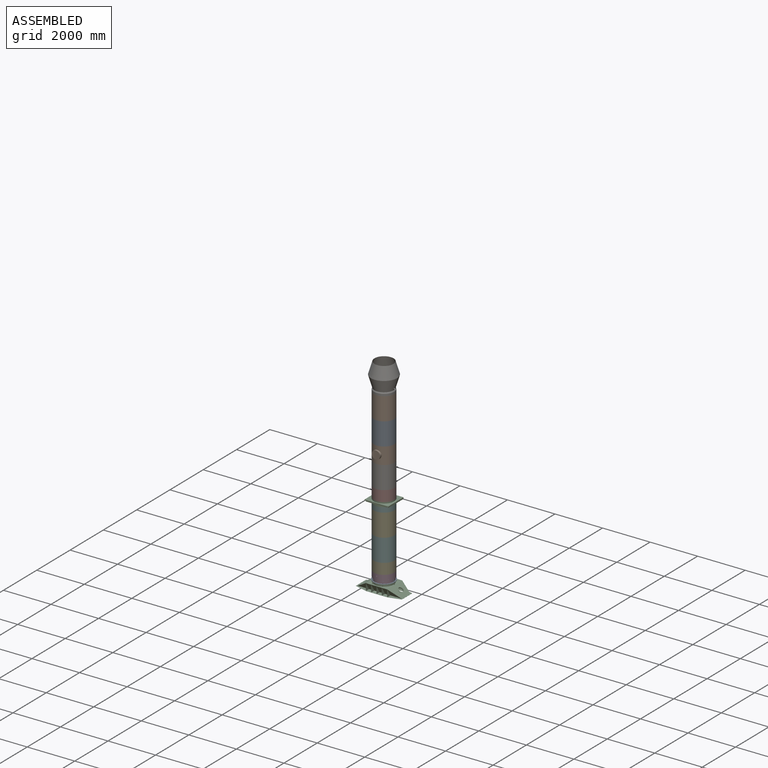
[diagram: assembled view]
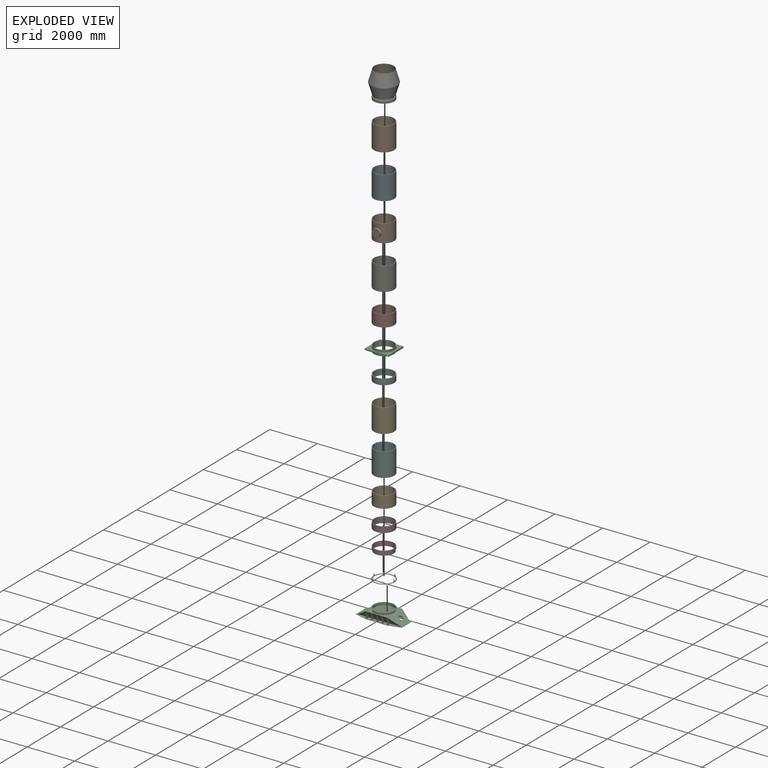
[diagram: exploded view]
GUIDED TOUR — MATED ASSEMBLY (Onshape document 00dcdc60ab96011bba04299d, AutoMate assembly 00dcdc60ab96011bba04299d_60f186a448aab7cdc48847c5_920a1cc981edee7858caf9ab_default)

This assembly has 15 components, labeled P0..P14 below (a component is one placed occurrence of a part; the same part can appear more than once), held together by 14 mates. A mate is a constraint between two components; its type names the relative motion it leaves free:
  FASTENED — locks the two components together rigidly (no relative motion).
Axis/direction vectors are unit vectors and 'through' points are millimeter coordinates, both in the assembly's world frame.

MATES
  1. FASTENED "Fastened 9": P7 <-> P10, direction (0.000, 0.000, -1.000) through (16.68, -8.72, 3558.68) mm
  2. FASTENED "Fastened 7": P13 <-> P12, direction (0.000, 0.000, -1.000) through (16.68, -8.72, 3158.68) mm
  3. FASTENED "Fastened 6": P12 <-> P5, direction (0.000, 0.000, -1.000) through (16.68, -8.72, 2203.68) mm
  4. FASTENED "Fastened 10": P7 <-> P6, direction (0.000, 0.000, 1.000) through (16.68, -8.72, 4013.68) mm
  5. FASTENED "Fastened 2": P11 <-> P2, direction (0.000, 0.000, -1.000) through (16.68, -8.72, 393.68) mm
  6. FASTENED "Fastened 11": P1 <-> P6, direction (0.000, 0.000, -1.000) through (16.68, -8.72, 4968.68) mm
  7. FASTENED "Fastened 4": P4 <-> P3, direction (0.000, 0.000, -1.000) through (16.68, -8.72, 793.68) mm
  8. FASTENED "Fastened 14": P9 <-> P14, direction (0.000, 0.000, 1.000) through (16.68, -8.72, 7583.68) mm
  9. FASTENED "Fastened 8": P10 <-> P13, direction (0.000, 0.000, -1.000) through (16.68, -8.72, 3363.68) mm
  10. FASTENED "Fastened 3": P3 <-> P11, direction (0.000, 0.000, -1.000) through (16.68, -8.72, 588.68) mm
  11. FASTENED "Fastened 12": P8 <-> P1, direction (0.000, 0.000, -1.000) through (16.68, -8.72, 5673.68) mm
  12. FASTENED "Fastened 13": P8 <-> P9, direction (0.000, 0.000, 1.000) through (16.68, -8.72, 6628.68) mm
  13. FASTENED "Fastened 5": P5 <-> P4, direction (0.000, 0.000, -1.000) through (16.68, -8.72, 1248.68) mm
  14. FASTENED "Fastened 1": P0 <-> P2, direction (0.000, 0.000, -1.000) through (16.68, -8.72, 393.68) mm

ASSEMBLY ORDER
  1. P0 — the base component [order verified]
  2. P11 [order verified]
  3. P2 [order verified]
  4. P3 [order verified]
  5. P4 [order verified]
  6. P5 [order verified]
  7. P12 [order verified]
  8. P13 [order verified]
  9. P10 [order verified]
  10. P7 [order verified]
  11. P6 [order verified]
  12. P1 [order verified]
  13. P8 [order verified]
  14. P9 [order verified]
  15. P14 [order verified]
Order-tag legend:
  [order verified] — this step's position reverses a verified removal order: the component was checked to insert without passing through the ones already placed.

Of the 15 components, 11 carry the full construction recipe — the FeatureScript program that regenerates the part's solid from scratch; the rest are supplied as boundary geometry only.
Because this assembly has more than 12 components, the tour below covers the 12 most significant ones individually (every recipe-attached component first, then the largest by part volume), in assembly order; the remaining 3 are summarized together in a grouped section at the end.
Each toured component is shown spotlighted twice — in the assembled view, then in the exploded view, where a leader line traces a displaced component back to its assembled socket (saturated green if recipe-attached, orange if geometry-only; every other component desaturated gray) — followed by its recipe or geometry summary and the mates that hold it.
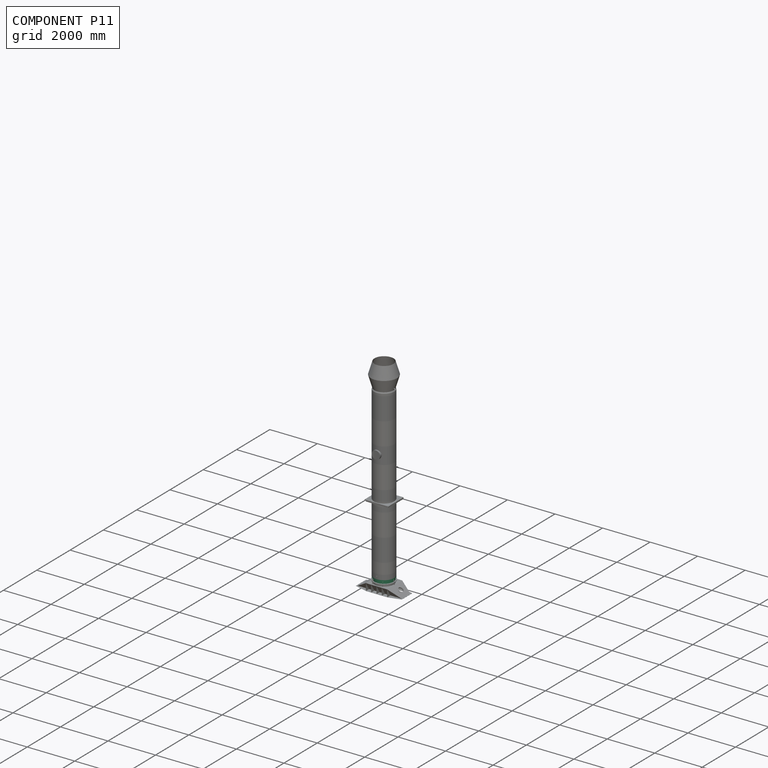
[diagram: component P11 — assembled]
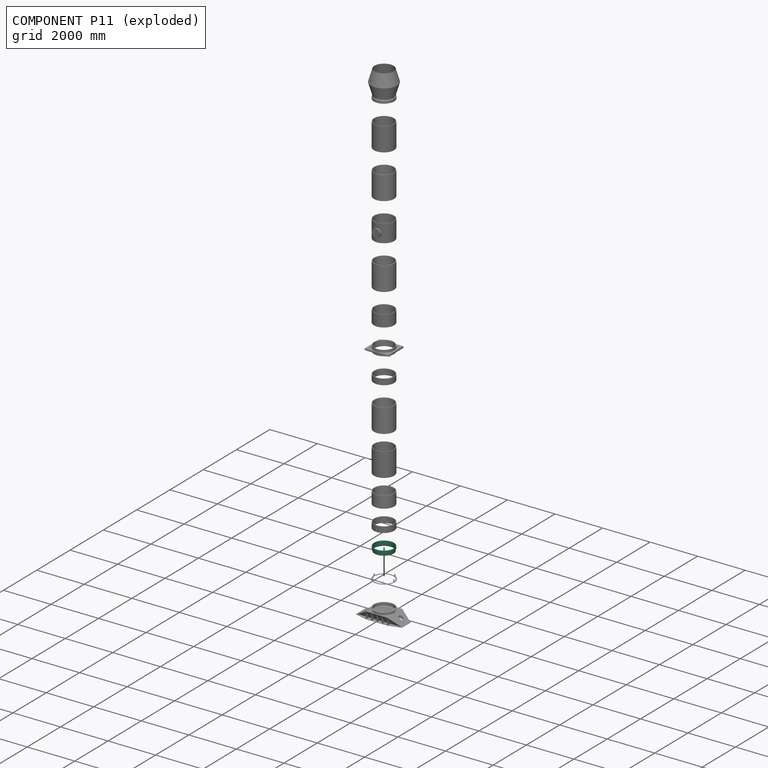
[diagram: component P11 — exploded]
COMPONENT P11 — recipe-attached (CADFS 00581985, mesh-verified: the recipe's output STEP matches this component's geometry to below the mesh-comparison resolution (tessellation chordal tolerance ~1.83 mm)).
Held by: FASTENED mate "Fastened 2" to P2; FASTENED mate "Fastened 3" to P3.
Construction recipe (FeatureScript — the CAD program that rebuilds this solid; sketch coordinates are in the units given by the * unit suffixes, e.g. mm):

FeatureScript 2625;
import(path : "onshape/std/geometry.fs", version : "2625.0");
import(path : "onshape/std/common.fs", version : "2625.0");
const mm = millimeter;
const VERTEX = EntityType.VERTEX;
const EDGE = EntityType.EDGE;
const FACE = EntityType.FACE;
const BODY = EntityType.BODY;
function v(x, y){return vector(x, y);}
function OD(order){return orderDisambiguation(order);}
function OSD(set){return originalSetDisambiguation(set);}
function TD(topology){return topologyDisambiguation(topology);}
function TDD(query){return trueDependencyDisambiguation(query);}
function sQuery(a, b, c) {return sketchEntityQuery(a, b, c);}

annotation { "Feature Type Name" : "Feature", "Feature Type Description" : "" }
export const myFeature = defineFeature(function(context is Context, id is Id, definition is map)
    precondition{}
    {
        {
            var Q0;
            Q0=qCreatedBy(makeId("Front.planeOp"),FACE);
            var sketch = newSketch(context, id + "F0", { "sketchPlane" : qUnion([Q0])});
            skLineSegment(sketch, "E0", {"start": v(0, 710.75) * mm, "end": v(0, -704.58) * mm, "construction": true});
            skLineSegment(sketch, "E1", {"start": v(-400, 295.65) * mm, "end": v(-400, 410.65) * mm});
            skLineSegment(sketch, "E2", {"start": v(-400, 410.65) * mm, "end": v(-401, 410.65) * mm});
            skLineSegment(sketch, "E3", {"start": v(-424, 410.65) * mm, "end": v(-425, 410.65) * mm});
            skLineSegment(sketch, "E4", {"start": v(-425, 410.65) * mm, "end": v(-425, 360.65) * mm});
            skLineSegment(sketch, "E5", {"start": v(-425, 360.65) * mm, "end": v(-401, 360.65) * mm});
            skLineSegment(sketch, "E6", {"start": v(-401, 360.65) * mm, "end": v(-401, 295.65) * mm});
            skLineSegment(sketch, "E7", {"start": v(-424, 450.65) * mm, "end": v(-424, 410.65) * mm});
            skLineSegment(sketch, "E8", {"start": v(-424, 450.65) * mm, "end": v(-401, 450.65) * mm});
            skLineSegment(sketch, "E9", {"start": v(-401, 410.65) * mm, "end": v(-401, 450.65) * mm});
            skLineSegment(sketch, "E10", {"start": v(-400, 295.65) * mm, "end": v(-400, 255.65) * mm});
            skLineSegment(sketch, "E11", {"start": v(-401, 295.65) * mm, "end": v(-401, 255.65) * mm});
            skLineSegment(sketch, "E12", {"start": v(-401, 255.65) * mm, "end": v(-400, 255.65) * mm});
            skSolve(sketch);
        }
        {
            var Q0;
            Q0=qSketchRegion(id+"F0",true);
            var Q1;
            Q1=sQuery(id+"F0.wireOp",EDGE,"E0");
            revolve(context, id + "F1", {"entities" : qUnion([Q0]), "axis" : qUnion([Q1]), "revolveType" : RevolveType.FULL});
        }
    });
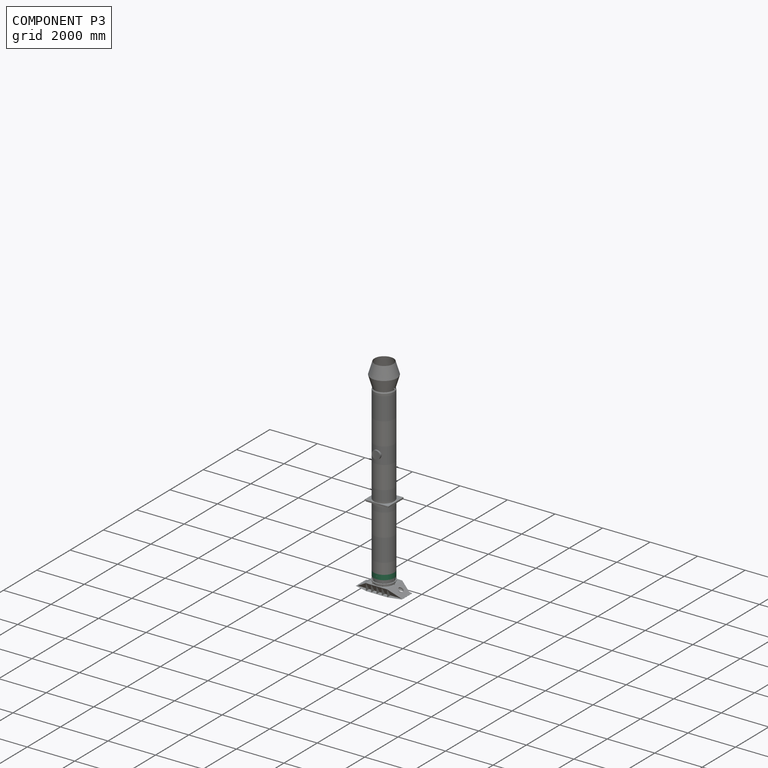
[diagram: component P3 — assembled]
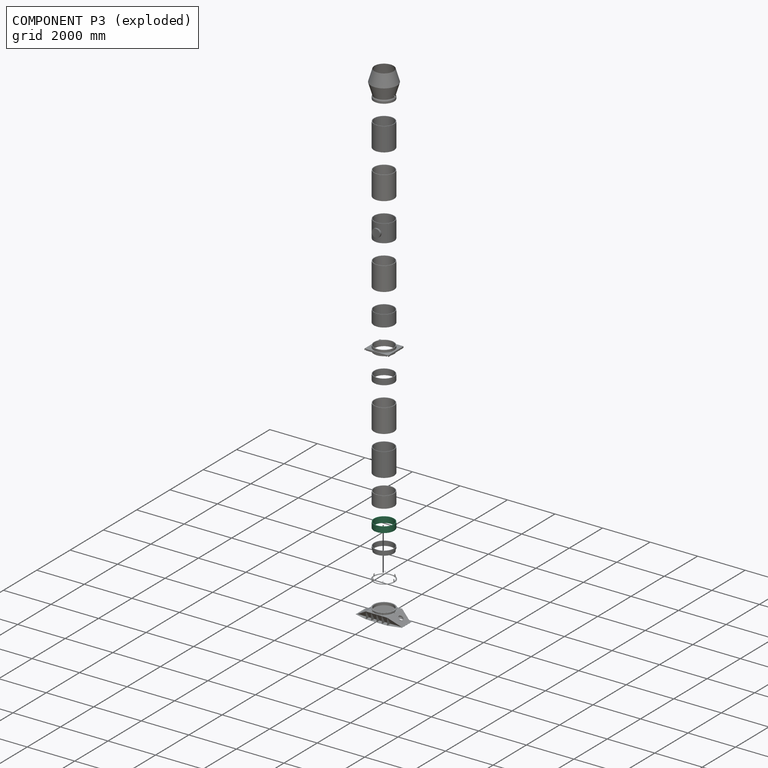
[diagram: component P3 — exploded]
COMPONENT P3 — recipe-attached (CADFS 00581888, mesh-verified: the recipe's output STEP matches this component's geometry to below the mesh-comparison resolution (tessellation chordal tolerance ~1.87 mm)).
Held by: FASTENED mate "Fastened 4" to P4; FASTENED mate "Fastened 3" to P11.
Construction recipe (FeatureScript — the CAD program that rebuilds this solid; sketch coordinates are in the units given by the * unit suffixes, e.g. mm):

FeatureScript 2625;
import(path : "onshape/std/geometry.fs", version : "2625.0");
import(path : "onshape/std/common.fs", version : "2625.0");
const mm = millimeter;
const VERTEX = EntityType.VERTEX;
const EDGE = EntityType.EDGE;
const FACE = EntityType.FACE;
const BODY = EntityType.BODY;
function v(x, y){return vector(x, y);}
function OD(order){return orderDisambiguation(order);}
function OSD(set){return originalSetDisambiguation(set);}
function TD(topology){return topologyDisambiguation(topology);}
function TDD(query){return trueDependencyDisambiguation(query);}
function sQuery(a, b, c) {return sketchEntityQuery(a, b, c);}

annotation { "Feature Type Name" : "Feature", "Feature Type Description" : "" }
export const myFeature = defineFeature(function(context is Context, id is Id, definition is map)
    precondition{}
    {
        {
            var Q0;
            Q0=qCreatedBy(makeId("Front.planeOp"),FACE);
            var sketch = newSketch(context, id + "F0", { "sketchPlane" : qUnion([Q0])});
            skLineSegment(sketch, "E0", {"start": v(0, 74.87) * mm, "end": v(0, -73.71) * mm, "construction": true});
            skLineSegment(sketch, "E1", {"start": v(0, 374.84) * mm, "end": v(0, -528.94) * mm, "construction": true});
            skLineSegment(sketch, "E2", {"start": v(-400, -489.75) * mm, "end": v(-400, -284.75) * mm});
            skLineSegment(sketch, "E3", {"start": v(-400, -284.75) * mm, "end": v(-401, -284.75) * mm});
            skLineSegment(sketch, "E4", {"start": v(-401, -284.75) * mm, "end": v(-401, -244.75) * mm});
            skLineSegment(sketch, "E5", {"start": v(-401, -244.75) * mm, "end": v(-424, -244.75) * mm});
            skLineSegment(sketch, "E6", {"start": v(-424, -244.75) * mm, "end": v(-424, -284.75) * mm});
            skLineSegment(sketch, "E7", {"start": v(-424, -284.75) * mm, "end": v(-425, -284.75) * mm});
            skLineSegment(sketch, "E8", {"start": v(-425, -284.75) * mm, "end": v(-425, -489.75) * mm});
            skLineSegment(sketch, "E9", {"start": v(-425, -489.75) * mm, "end": v(-424, -489.75) * mm});
            skLineSegment(sketch, "E10", {"start": v(-424, -489.75) * mm, "end": v(-424, -449.75) * mm});
            skLineSegment(sketch, "E11", {"start": v(-424, -449.75) * mm, "end": v(-401, -449.75) * mm});
            skLineSegment(sketch, "E12", {"start": v(-401, -449.75) * mm, "end": v(-401, -489.75) * mm});
            skLineSegment(sketch, "E13", {"start": v(-401, -489.75) * mm, "end": v(-400, -489.75) * mm});
            skSolve(sketch);
        }
        {
            var Q0;
            Q0=qSketchRegion(id+"F0",true);
            var Q1;
            Q1=sQuery(id+"F0.wireOp",EDGE,"E1");
            revolve(context, id + "F1", {"entities" : qUnion([Q0]), "axis" : qUnion([Q1]), "revolveType" : RevolveType.FULL});
        }
        {
            var Q0;
            Q0=qCreatedBy(makeId("Front.planeOp"),FACE);
            var sketch = newSketch(context, id + "F2", { "sketchPlane" : qUnion([Q0])});
            skLineSegment(sketch, "E14", {"start": v(0, 0) * mm, "end": v(0, -739.5) * mm, "construction": true});
            skCircle(sketch, "E15", {"center": v(0, -369.75) * mm, "radius": 10 * mm});
            skLineSegment(sketch, "E16.0", {"start": v(-424, -244.75) * mm, "end": v(424, -244.75) * mm, "construction": true});
            skSolve(sketch);
        }
        {
            var Q0;
            Q0=qSketchRegion(id+"F2",true);
            extrude(context, id + "F3", {"entities" : qUnion([Q0]), "operationType" : NewBodyOperationType.REMOVE, "offsetDistance" : 25 * mm, "depth" : 661 * mm});
        }
        {
            var Q0;
            Q0=qCreatedBy(makeId("Front.planeOp"),FACE);
            cPlane(context, id + "F4", {"entities" : qUnion([Q0]), "cplaneType" : CPlaneType.OFFSET, "offset" : 405 * mm, "width" : 150 * mm, "height" : 150 * mm});
        }
        {
            var Q0;
            Q0=qCreatedBy(id+"F4.planeOp",FACE);
            var sketch = newSketch(context, id + "F5", { "sketchPlane" : qUnion([Q0])});
            skLineSegment(sketch, "E17", {"start": v(0, 0) * mm, "end": v(0, -620.93) * mm, "construction": true});
            skLineSegment(sketch, "E18.0", {"start": v(-424, -244.75) * mm, "end": v(424, -244.75) * mm, "construction": true});
            skCircle(sketch, "E19.0", {"center": v(0, -369.75) * mm, "radius": 10 * mm});
            skCircle(sketch, "E20", {"center": v(0, -369.75) * mm, "radius": 12 * mm});
            skSolve(sketch);
        }
        {
            var Q0;
            Q0=qSketchRegion(id+"F5",true);
            extrude(context, id + "F6", {"entities" : qUnion([Q0]), "operationType" : NewBodyOperationType.ADD, "depth" : 50 * mm, "offsetDistance" : 25 * mm});
        }
    });
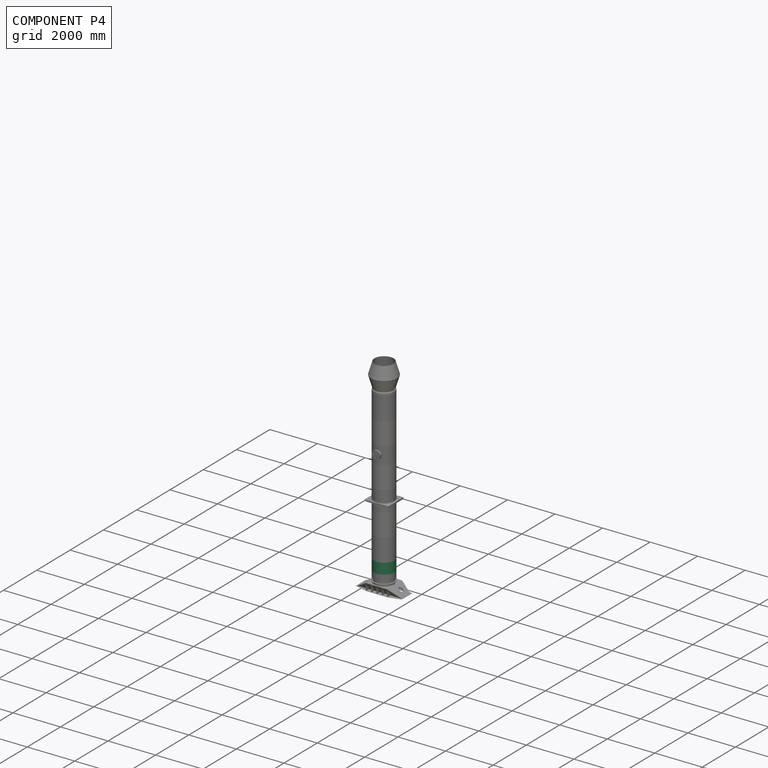
[diagram: component P4 — assembled]
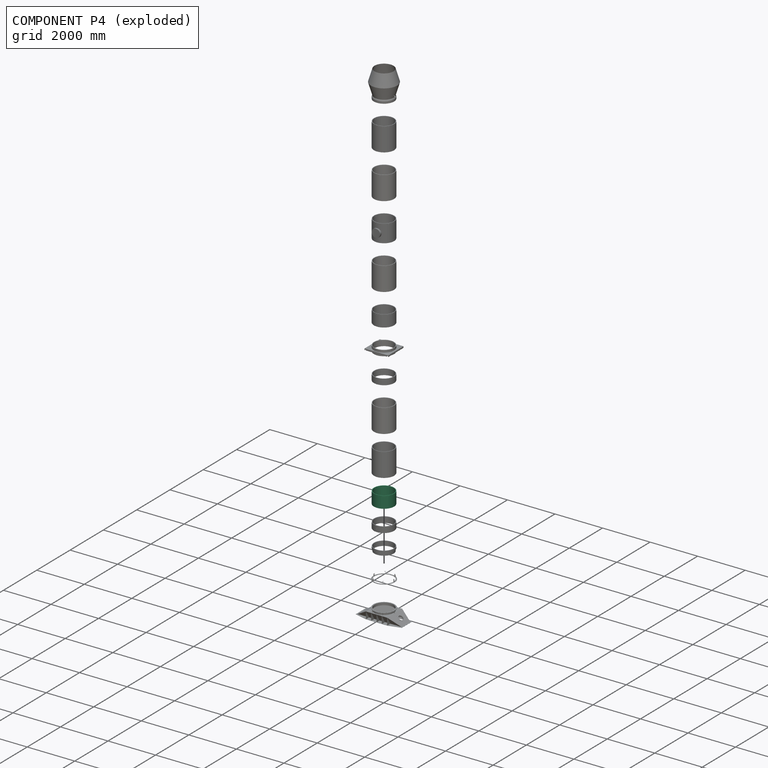
[diagram: component P4 — exploded]
COMPONENT P4 — recipe-attached (CADFS 00581938, mesh-verified: the recipe's output STEP matches this component's geometry to below the mesh-comparison resolution (tessellation chordal tolerance ~1.95 mm)).
Held by: FASTENED mate "Fastened 4" to P3; FASTENED mate "Fastened 5" to P5.
Construction recipe (FeatureScript — the CAD program that rebuilds this solid; sketch coordinates are in the units given by the * unit suffixes, e.g. mm):

FeatureScript 2625;
import(path : "onshape/std/geometry.fs", version : "2625.0");
import(path : "onshape/std/common.fs", version : "2625.0");
const mm = millimeter;
const VERTEX = EntityType.VERTEX;
const EDGE = EntityType.EDGE;
const FACE = EntityType.FACE;
const BODY = EntityType.BODY;
function v(x, y){return vector(x, y);}
function OD(order){return orderDisambiguation(order);}
function OSD(set){return originalSetDisambiguation(set);}
function TD(topology){return topologyDisambiguation(topology);}
function TDD(query){return trueDependencyDisambiguation(query);}
function sQuery(a, b, c) {return sketchEntityQuery(a, b, c);}

annotation { "Feature Type Name" : "Feature", "Feature Type Description" : "" }
export const myFeature = defineFeature(function(context is Context, id is Id, definition is map)
    precondition{}
    {
        {
            var Q0;
            Q0=qCreatedBy(makeId("Front.planeOp"),FACE);
            var sketch = newSketch(context, id + "F0", { "sketchPlane" : qUnion([Q0])});
            skLineSegment(sketch, "E0", {"start": v(0, 345.75) * mm, "end": v(0, -558.03) * mm, "construction": true});
            skLineSegment(sketch, "E1", {"start": v(-400, -518.84) * mm, "end": v(-400, -63.84) * mm});
            skLineSegment(sketch, "E2", {"start": v(-400, -63.84) * mm, "end": v(-401, -63.84) * mm});
            skLineSegment(sketch, "E3", {"start": v(-401, -63.84) * mm, "end": v(-401, -23.84) * mm});
            skLineSegment(sketch, "E4", {"start": v(-401, -23.84) * mm, "end": v(-424, -23.84) * mm});
            skLineSegment(sketch, "E5", {"start": v(-424, -23.84) * mm, "end": v(-424, -63.84) * mm});
            skLineSegment(sketch, "E6", {"start": v(-424, -63.84) * mm, "end": v(-425, -63.84) * mm});
            skLineSegment(sketch, "E7", {"start": v(-425, -63.84) * mm, "end": v(-425, -518.84) * mm});
            skLineSegment(sketch, "E8", {"start": v(-425, -518.84) * mm, "end": v(-424, -518.84) * mm});
            skLineSegment(sketch, "E9", {"start": v(-424, -518.84) * mm, "end": v(-424, -478.84) * mm});
            skLineSegment(sketch, "E10", {"start": v(-424, -478.84) * mm, "end": v(-401, -478.84) * mm});
            skLineSegment(sketch, "E11", {"start": v(-401, -478.84) * mm, "end": v(-401, -518.84) * mm});
            skLineSegment(sketch, "E12", {"start": v(-401, -518.84) * mm, "end": v(-400, -518.84) * mm});
            skSolve(sketch);
        }
        {
            var Q0;
            Q0=qSketchRegion(id+"F0",true);
            var Q1;
            Q1=sQuery(id+"F0.wireOp",EDGE,"E0");
            revolve(context, id + "F1", {"entities" : qUnion([Q0]), "axis" : qUnion([Q1]), "revolveType" : RevolveType.FULL});
        }
    });
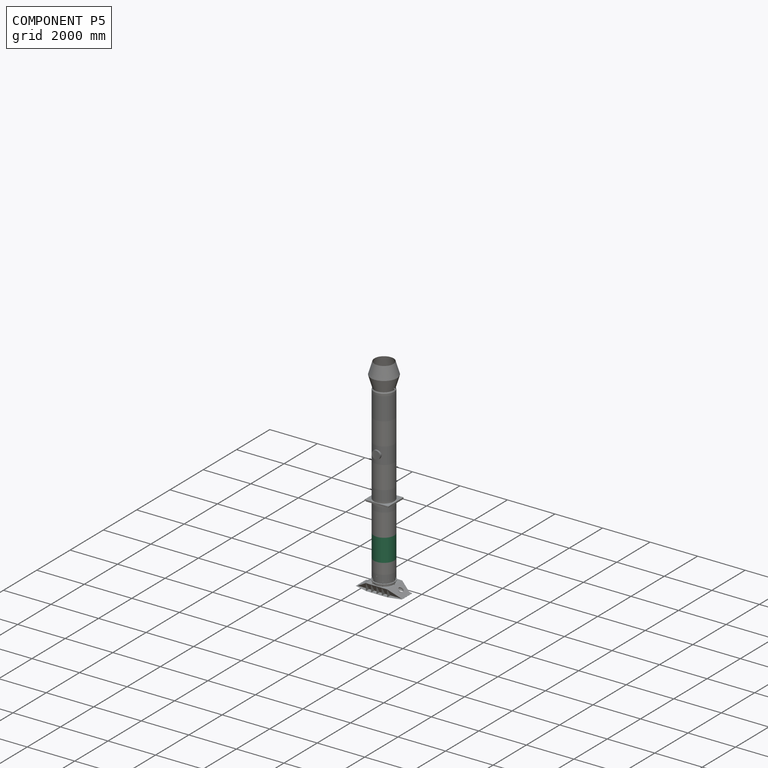
[diagram: component P5 — assembled]
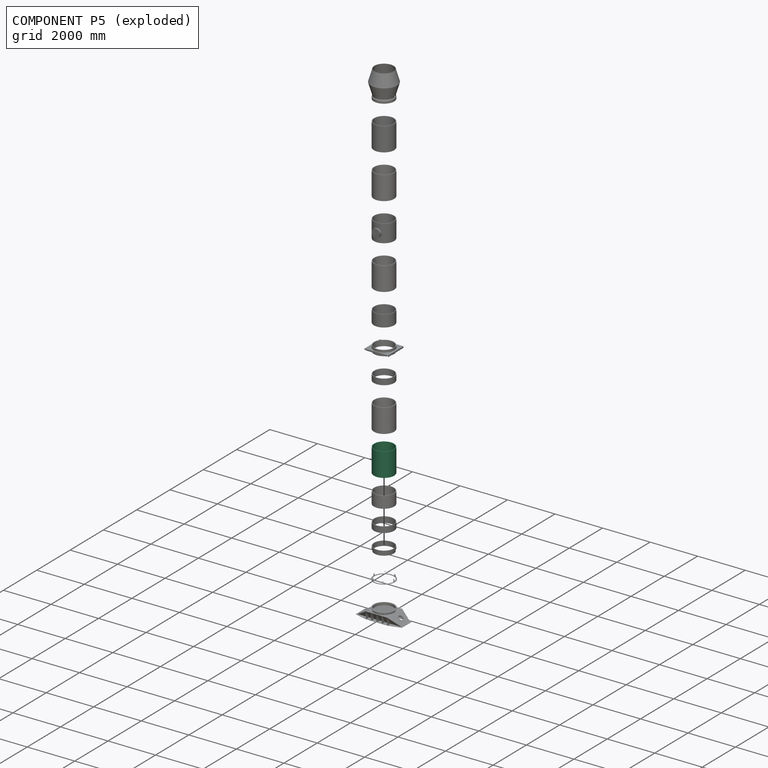
[diagram: component P5 — exploded]
COMPONENT P5 — recipe-attached (CADFS 00581818, mesh-verified: the recipe's output STEP matches this component's geometry to below the mesh-comparison resolution (tessellation chordal tolerance ~2.34 mm)).
Held by: FASTENED mate "Fastened 6" to P12; FASTENED mate "Fastened 5" to P4.
Construction recipe (FeatureScript — the CAD program that rebuilds this solid; sketch coordinates are in the units given by the * unit suffixes, e.g. mm):

FeatureScript 2625;
import(path : "onshape/std/geometry.fs", version : "2625.0");
import(path : "onshape/std/common.fs", version : "2625.0");
const mm = millimeter;
const VERTEX = EntityType.VERTEX;
const EDGE = EntityType.EDGE;
const FACE = EntityType.FACE;
const BODY = EntityType.BODY;
function v(x, y){return vector(x, y);}
function OD(order){return orderDisambiguation(order);}
function OSD(set){return originalSetDisambiguation(set);}
function TD(topology){return topologyDisambiguation(topology);}
function TDD(query){return trueDependencyDisambiguation(query);}
function sQuery(a, b, c) {return sketchEntityQuery(a, b, c);}

annotation { "Feature Type Name" : "Feature", "Feature Type Description" : "" }
export const myFeature = defineFeature(function(context is Context, id is Id, definition is map)
    precondition{}
    {
        {
            var Q0;
            Q0=qCreatedBy(makeId("Front.planeOp"),FACE);
            var sketch = newSketch(context, id + "F0", { "sketchPlane" : qUnion([Q0])});
            skLineSegment(sketch, "E0", {"start": v(0, 345.75) * mm, "end": v(0, -558.03) * mm, "construction": true});
            skLineSegment(sketch, "E1", {"start": v(-400, -518.84) * mm, "end": v(-400, 436.16) * mm});
            skLineSegment(sketch, "E2", {"start": v(-400, 436.16) * mm, "end": v(-401, 436.16) * mm});
            skLineSegment(sketch, "E3", {"start": v(-401, 436.16) * mm, "end": v(-401, 476.16) * mm});
            skLineSegment(sketch, "E4", {"start": v(-401, 476.16) * mm, "end": v(-424, 476.16) * mm});
            skLineSegment(sketch, "E5", {"start": v(-424, 476.16) * mm, "end": v(-424, 436.16) * mm});
            skLineSegment(sketch, "E6", {"start": v(-424, 436.16) * mm, "end": v(-425, 436.16) * mm});
            skLineSegment(sketch, "E7", {"start": v(-425, 436.16) * mm, "end": v(-425, -518.84) * mm});
            skLineSegment(sketch, "E8", {"start": v(-425, -518.84) * mm, "end": v(-424, -518.84) * mm});
            skLineSegment(sketch, "E9", {"start": v(-424, -518.84) * mm, "end": v(-424, -478.84) * mm});
            skLineSegment(sketch, "E10", {"start": v(-424, -478.84) * mm, "end": v(-401, -478.84) * mm});
            skLineSegment(sketch, "E11", {"start": v(-401, -478.84) * mm, "end": v(-401, -518.84) * mm});
            skLineSegment(sketch, "E12", {"start": v(-401, -518.84) * mm, "end": v(-400, -518.84) * mm});
            skSolve(sketch);
        }
        {
            var Q0;
            Q0 = qSketchRegion(id + "F0", true);
            var Q1;
            Q1=sQuery(id+"F0.wireOp",EDGE,"E0");
            revolve(context, id + "F1", {"entities" : qUnion([Q0]), "axis" : qUnion([Q1]), "revolveType" : RevolveType.FULL});
        }
    });
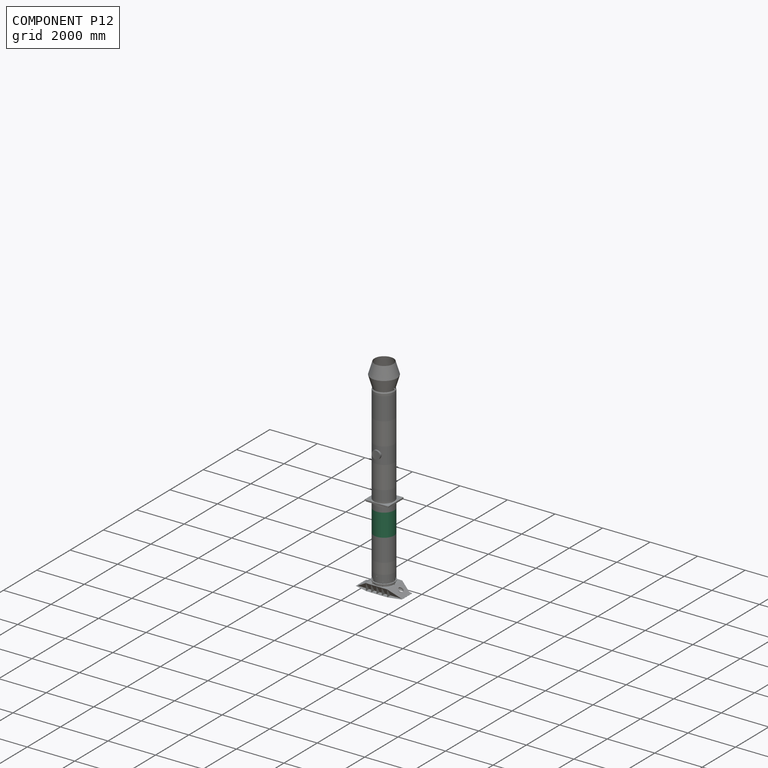
[diagram: component P12 — assembled]
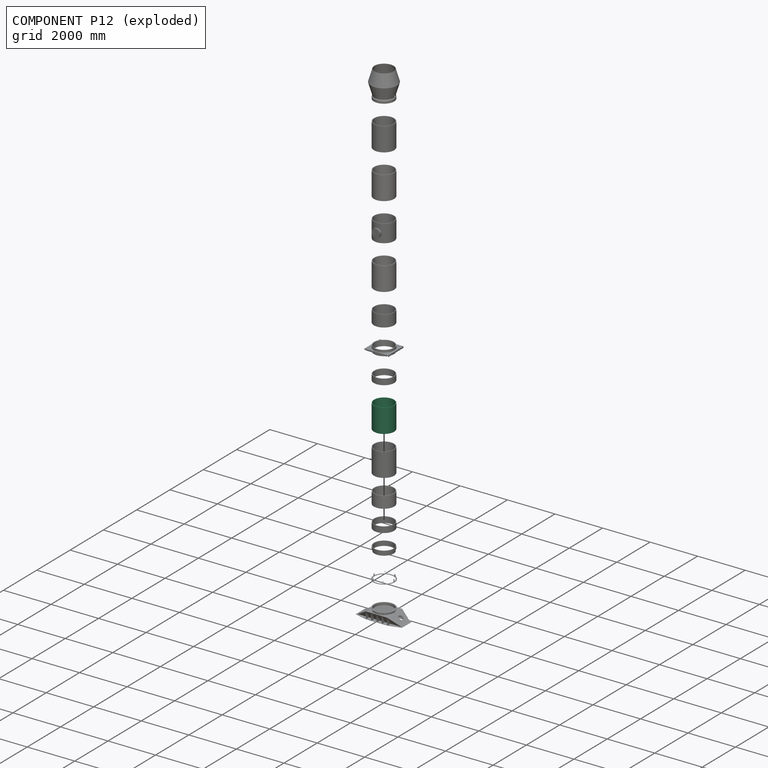
[diagram: component P12 — exploded]
COMPONENT P12 — same part as P5 (CADFS 00581818); its construction recipe is shown at P5.
Held by: FASTENED mate "Fastened 7" to P13; FASTENED mate "Fastened 6" to P5.
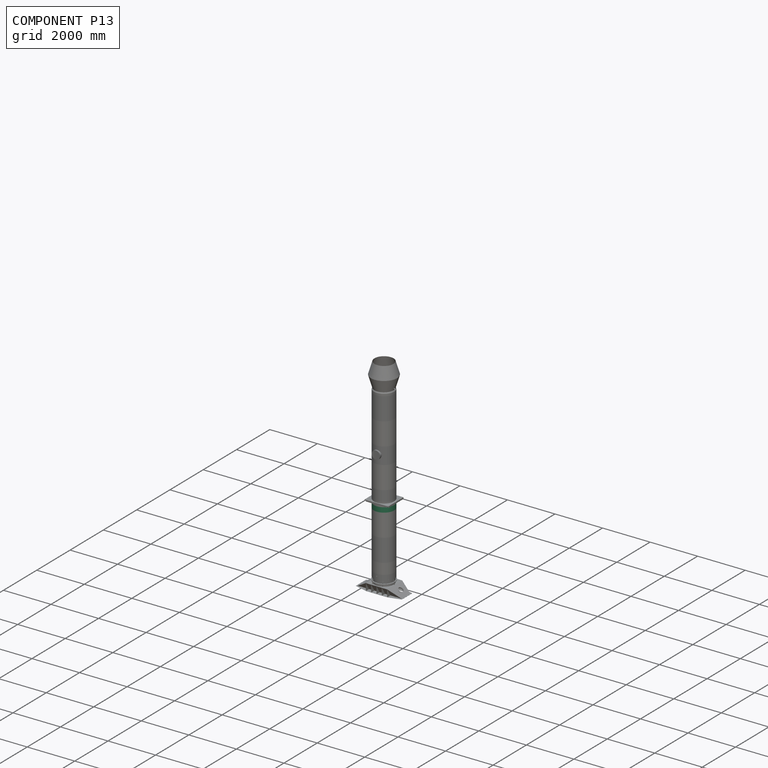
[diagram: component P13 — assembled]
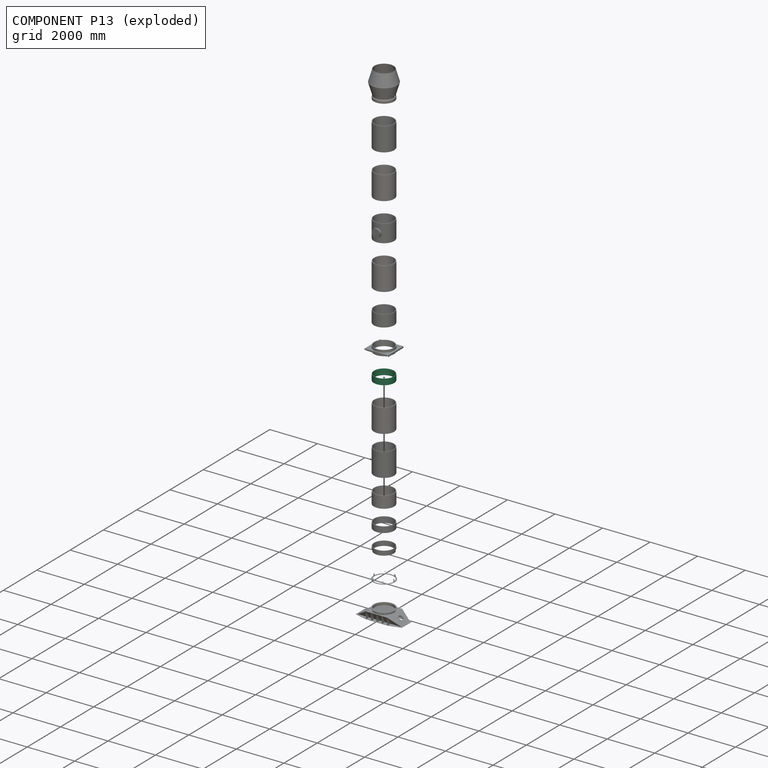
[diagram: component P13 — exploded]
COMPONENT P13 — recipe-attached (CADFS 00581950, mesh-verified: the recipe's output STEP matches this component's geometry to below the mesh-comparison resolution (tessellation chordal tolerance ~1.84 mm)).
Held by: FASTENED mate "Fastened 7" to P12; FASTENED mate "Fastened 8" to P10.
Construction recipe (FeatureScript — the CAD program that rebuilds this solid; sketch coordinates are in the units given by the * unit suffixes, e.g. mm):

FeatureScript 2625;
import(path : "onshape/std/geometry.fs", version : "2625.0");
import(path : "onshape/std/common.fs", version : "2625.0");
const mm = millimeter;
const VERTEX = EntityType.VERTEX;
const EDGE = EntityType.EDGE;
const FACE = EntityType.FACE;
const BODY = EntityType.BODY;
function v(x, y){return vector(x, y);}
function OD(order){return orderDisambiguation(order);}
function OSD(set){return originalSetDisambiguation(set);}
function TD(topology){return topologyDisambiguation(topology);}
function TDD(query){return trueDependencyDisambiguation(query);}
function sQuery(a, b, c) {return sketchEntityQuery(a, b, c);}

annotation { "Feature Type Name" : "Feature", "Feature Type Description" : "" }
export const myFeature = defineFeature(function(context is Context, id is Id, definition is map)
    precondition{}
    {
        {
            var Q0;
            Q0=qCreatedBy(makeId("Front.planeOp"),FACE);
            var sketch = newSketch(context, id + "F0", { "sketchPlane" : qUnion([Q0])});
            skLineSegment(sketch, "E0", {"start": v(0, 345.75) * mm, "end": v(0, -558.03) * mm, "construction": true});
            skLineSegment(sketch, "E1", {"start": v(-400, -518.84) * mm, "end": v(-400, -313.84) * mm});
            skLineSegment(sketch, "E2", {"start": v(-400, -313.84) * mm, "end": v(-401, -313.84) * mm});
            skLineSegment(sketch, "E3", {"start": v(-401, -313.84) * mm, "end": v(-401, -273.84) * mm});
            skLineSegment(sketch, "E4", {"start": v(-401, -273.84) * mm, "end": v(-424, -273.84) * mm});
            skLineSegment(sketch, "E5", {"start": v(-424, -273.84) * mm, "end": v(-424, -313.84) * mm});
            skLineSegment(sketch, "E6", {"start": v(-424, -313.84) * mm, "end": v(-425, -313.84) * mm});
            skLineSegment(sketch, "E7", {"start": v(-425, -313.84) * mm, "end": v(-425, -518.84) * mm});
            skLineSegment(sketch, "E8", {"start": v(-425, -518.84) * mm, "end": v(-424, -518.84) * mm});
            skLineSegment(sketch, "E9", {"start": v(-424, -518.84) * mm, "end": v(-424, -478.84) * mm});
            skLineSegment(sketch, "E10", {"start": v(-424, -478.84) * mm, "end": v(-401, -478.84) * mm});
            skLineSegment(sketch, "E11", {"start": v(-401, -478.84) * mm, "end": v(-401, -518.84) * mm});
            skLineSegment(sketch, "E12", {"start": v(-401, -518.84) * mm, "end": v(-400, -518.84) * mm});
            skSolve(sketch);
        }
        {
            var Q0;
            Q0=qSketchRegion(id+"F0",true);
            var Q1;
            Q1=sQuery(id+"F0.wireOp",EDGE,"E0");
            revolve(context, id + "F1", {"entities" : qUnion([Q0]), "axis" : qUnion([Q1]), "revolveType" : RevolveType.FULL});
        }
    });
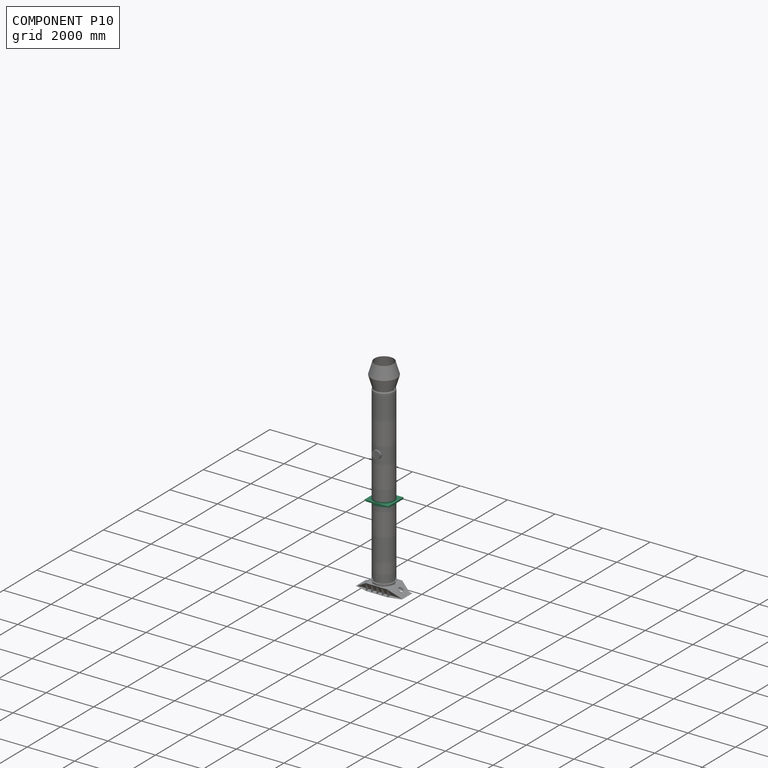
[diagram: component P10 — assembled]
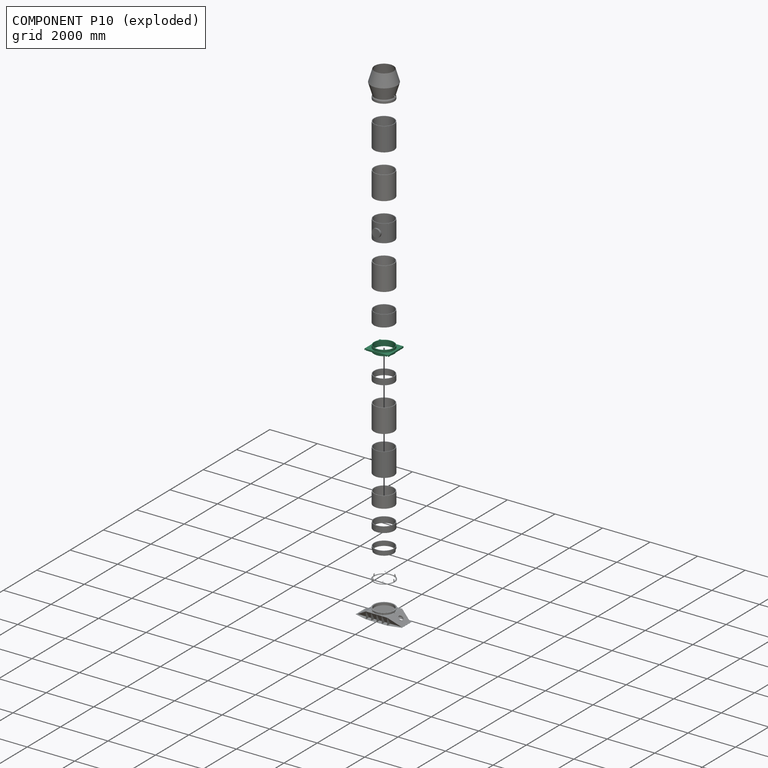
[diagram: component P10 — exploded]
COMPONENT P10 — recipe-attached (CADFS 00581864, mesh-verified: the recipe's output STEP matches this component's geometry to below the mesh-comparison resolution (tessellation chordal tolerance ~2.07 mm)).
Held by: FASTENED mate "Fastened 9" to P7; FASTENED mate "Fastened 8" to P13.
Construction recipe (FeatureScript — the CAD program that rebuilds this solid; sketch coordinates are in the units given by the * unit suffixes, e.g. mm):

FeatureScript 2625;
import(path : "onshape/std/geometry.fs", version : "2625.0");
import(path : "onshape/std/common.fs", version : "2625.0");
const mm = millimeter;
const VERTEX = EntityType.VERTEX;
const EDGE = EntityType.EDGE;
const FACE = EntityType.FACE;
const BODY = EntityType.BODY;
function v(x, y){return vector(x, y);}
function OD(order){return orderDisambiguation(order);}
function OSD(set){return originalSetDisambiguation(set);}
function TD(topology){return topologyDisambiguation(topology);}
function TDD(query){return trueDependencyDisambiguation(query);}
function sQuery(a, b, c) {return sketchEntityQuery(a, b, c);}

annotation { "Feature Type Name" : "Feature", "Feature Type Description" : "" }
export const myFeature = defineFeature(function(context is Context, id is Id, definition is map)
    precondition{}
    {
        {
            var Q0;
            Q0=qCreatedBy(makeId("Front.planeOp"),FACE);
            var sketch = newSketch(context, id + "F0", { "sketchPlane" : qUnion([Q0])});
            skLineSegment(sketch, "E0", {"start": v(0, 74.87) * mm, "end": v(0, -73.71) * mm, "construction": true});
            skLineSegment(sketch, "E1", {"start": v(0, 374.84) * mm, "end": v(0, -528.94) * mm, "construction": true});
            skLineSegment(sketch, "E2", {"start": v(-400, -140) * mm, "end": v(-400, 55) * mm});
            skLineSegment(sketch, "E3", {"start": v(-400, 55) * mm, "end": v(-401, 55) * mm});
            skLineSegment(sketch, "E4", {"start": v(-401, 55) * mm, "end": v(-401, 95) * mm});
            skLineSegment(sketch, "E5", {"start": v(-401, 95) * mm, "end": v(-424, 95) * mm});
            skLineSegment(sketch, "E6", {"start": v(-424, 95) * mm, "end": v(-424, 55) * mm});
            skLineSegment(sketch, "E7", {"start": v(-424, 55) * mm, "end": v(-425, 55) * mm});
            skLineSegment(sketch, "E8", {"start": v(-425, 55) * mm, "end": v(-425, -140) * mm});
            skLineSegment(sketch, "E9", {"start": v(-425, -140) * mm, "end": v(-424, -140) * mm});
            skLineSegment(sketch, "E10", {"start": v(-424, -140) * mm, "end": v(-424, -100) * mm});
            skLineSegment(sketch, "E11", {"start": v(-424, -100) * mm, "end": v(-401, -100) * mm});
            skLineSegment(sketch, "E12", {"start": v(-401, -100) * mm, "end": v(-401, -140) * mm});
            skLineSegment(sketch, "E13", {"start": v(-401, -140) * mm, "end": v(-400, -140) * mm});
            skSolve(sketch);
        }
        {
            var Q0;
            Q0=qSketchRegion(id+"F0",true);
            var Q1;
            Q1=sQuery(id+"F0.wireOp",EDGE,"E1");
            revolve(context, id + "F1", {"entities" : qUnion([Q0]), "axis" : qUnion([Q1]), "revolveType" : RevolveType.FULL});
        }
        {
            var Q0;
            Q0=qCreatedBy(makeId("Top.planeOp"),FACE);
            var sketch = newSketch(context, id + "F2", { "sketchPlane" : qUnion([Q0])});
            skLineSegment(sketch, "E14.bottom", {"start": v(500, 460) * mm, "end": v(-500, 460) * mm});
            skLineSegment(sketch, "E14.top", {"start": v(500, -460) * mm, "end": v(-500, -460) * mm});
            skLineSegment(sketch, "E14.left", {"start": v(500, 460) * mm, "end": v(500, -460) * mm});
            skLineSegment(sketch, "E14.right", {"start": v(-500, 460) * mm, "end": v(-500, -460) * mm});
            skPoint(sketch, "E14.middle", {"position": v(0, 0) * mm});
            skCircle(sketch, "E15.0", {"center": v(0, 0) * mm, "radius": 401 * mm});
            skCircle(sketch, "E16.0", {"center": v(0, 0) * mm, "radius": 400 * mm});
            skLineSegment(sketch, "E17", {"start": v(0, 0) * mm, "end": v(0, 773.78) * mm, "construction": true});
            skLineSegment(sketch, "E18", {"start": v(0, 0) * mm, "end": v(1007.48, 0) * mm, "construction": true});
            skCircle(sketch, "E19", {"center": v(470, 430) * mm, "radius": 10 * mm});
            skCircle(sketch, "E20.MirrorC", {"center": v(-470, 430) * mm, "radius": 10 * mm});
            skCircle(sketch, "E21.MirrorC", {"center": v(470, -430) * mm, "radius": 10 * mm});
            skCircle(sketch, "E22.MirrorC", {"center": v(-470, -430) * mm, "radius": 10 * mm});
            skSolve(sketch);
        }
        {
            var Q0;
            Q0=qSketchRegion(id+"F2",true);
            extrude(context, id + "F3", {"entities" : qUnion([Q0]), "operationType" : NewBodyOperationType.ADD, "oppositeDirection" : true, "depth" : 10 * mm});
        }
        {
            var Q0;
            Q0=makeQuery(id+"F3.opExtrude","CAP_FACE",FACE,{"disambiguationData":[OSD([sQuery(id+"F2.wireOp",EDGE,"E14.bottom"),sQuery(id+"F2.wireOp",EDGE,"E14.top"),sQuery(id+"F2.wireOp",EDGE,"E14.left"),sQuery(id+"F2.wireOp",EDGE,"E14.right"),sQuery(id+"F2.wireOp",EDGE,"E16.0"),sQuery(id+"F2.wireOp",EDGE,"E19"),sQuery(id+"F2.wireOp",EDGE,"E20.MirrorC"),sQuery(id+"F2.wireOp",EDGE,"E21.MirrorC"),sQuery(id+"F2.wireOp",EDGE,"E22.MirrorC")])],"isStart":false});
            var sketch = newSketch(context, id + "F4", { "sketchPlane" : qUnion([Q0])});
            skLineSegment(sketch, "E23", {"start": v(0, 0) * mm, "end": v(-1098.02, 0) * mm, "construction": true});
            skLineSegment(sketch, "E24", {"start": v(0, 0) * mm, "end": v(0, -1084.2) * mm, "construction": true});
            skLineSegment(sketch, "E25.bottom", {"start": v(445, 460) * mm, "end": v(-445, 460) * mm});
            skLineSegment(sketch, "E25.top", {"start": v(445, 450) * mm, "end": v(-445, 450) * mm});
            skLineSegment(sketch, "E25.left", {"start": v(445, 460) * mm, "end": v(445, 450) * mm});
            skLineSegment(sketch, "E25.right", {"start": v(-445, 460) * mm, "end": v(-445, 450) * mm});
            skLineSegment(sketch, "E26.bottom", {"start": v(-500, 460) * mm, "end": v(-490, 460) * mm});
            skLineSegment(sketch, "E26.top", {"start": v(-500, -460) * mm, "end": v(-490, -460) * mm});
            skLineSegment(sketch, "E26.left", {"start": v(-500, 460) * mm, "end": v(-500, -460) * mm});
            skLineSegment(sketch, "E26.right", {"start": v(-490, 460) * mm, "end": v(-490, -460) * mm});
            skLineSegment(sketch, "E27.MirrorCS", {"start": v(445, -460) * mm, "end": v(445, -450) * mm});
            skLineSegment(sketch, "E28.MirrorCS", {"start": v(-445, -460) * mm, "end": v(-445, -450) * mm});
            skLineSegment(sketch, "E29.MirrorCS", {"start": v(445, -450) * mm, "end": v(-445, -450) * mm});
            skLineSegment(sketch, "E30.MirrorCS", {"start": v(445, -460) * mm, "end": v(-445, -460) * mm});
            skLineSegment(sketch, "E31.MirrorCS", {"start": v(500, -460) * mm, "end": v(490, -460) * mm});
            skLineSegment(sketch, "E32.MirrorCS", {"start": v(500, 460) * mm, "end": v(490, 460) * mm});
            skLineSegment(sketch, "E33.MirrorCS", {"start": v(500, 460) * mm, "end": v(500, -460) * mm});
            skLineSegment(sketch, "E34.MirrorCS", {"start": v(490, 460) * mm, "end": v(490, -460) * mm});
            skLineSegment(sketch, "E35.MirrorCS", {"start": v(0, 0) * mm, "end": v(1098.02, 0) * mm, "construction": true});
            skSolve(sketch);
        }
        {
            var Q0;
            Q0=qSketchRegion(id+"F4",true);
            extrude(context, id + "F5", {"entities" : qUnion([Q0]), "operationType" : NewBodyOperationType.ADD, "depth" : 50 * mm});
        }
    });
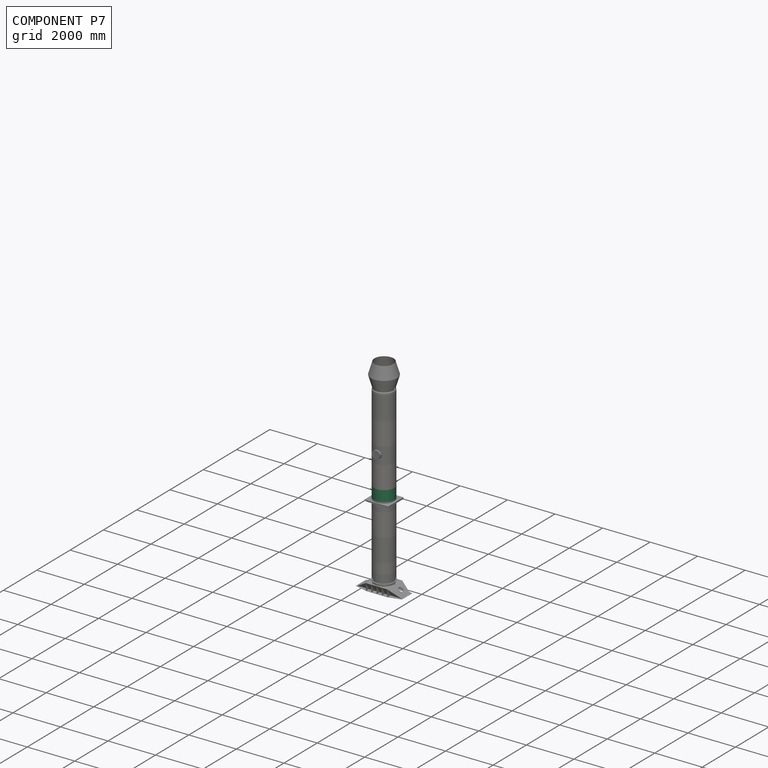
[diagram: component P7 — assembled]
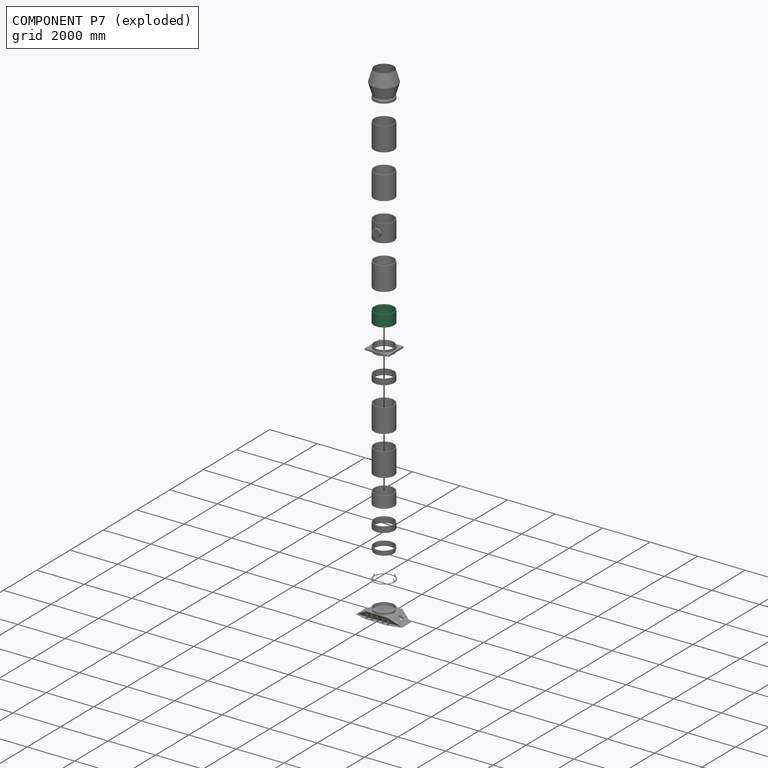
[diagram: component P7 — exploded]
COMPONENT P7 — same part as P4 (CADFS 00581938); its construction recipe is shown at P4.
Held by: FASTENED mate "Fastened 9" to P10; FASTENED mate "Fastened 10" to P6.
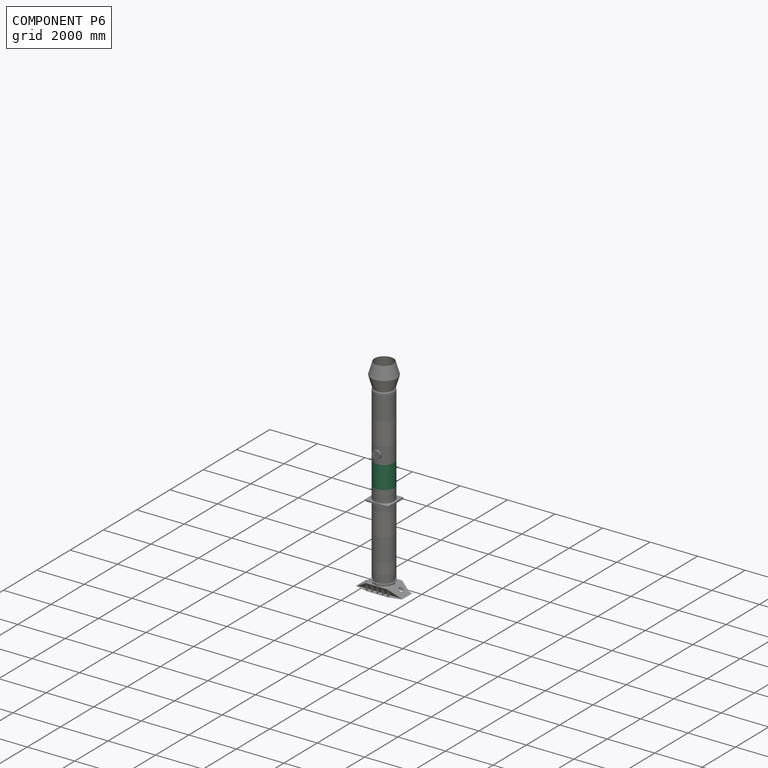
[diagram: component P6 — assembled]
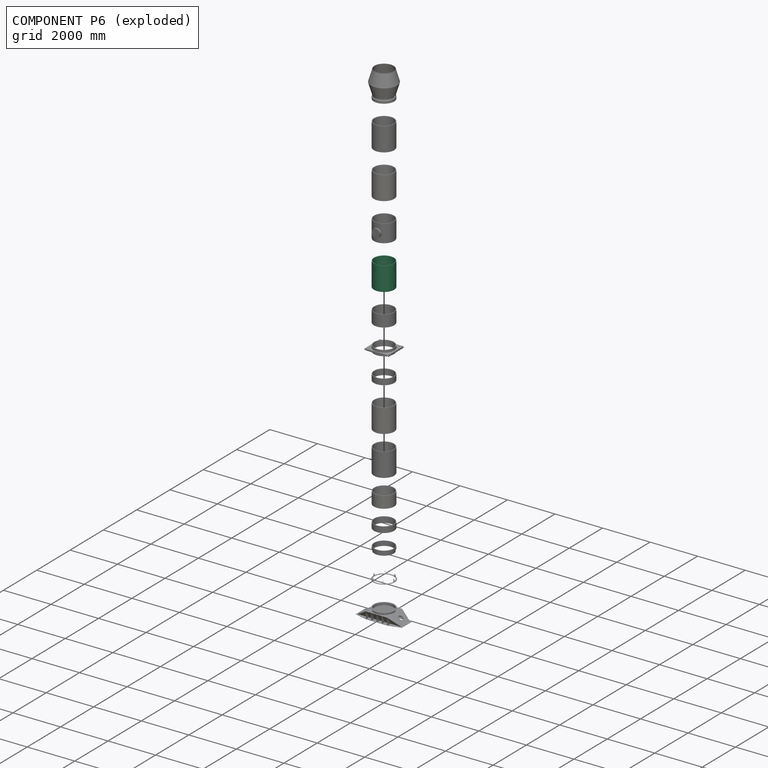
[diagram: component P6 — exploded]
COMPONENT P6 — same part as P5 (CADFS 00581818); its construction recipe is shown at P5.
Held by: FASTENED mate "Fastened 10" to P7; FASTENED mate "Fastened 11" to P1.
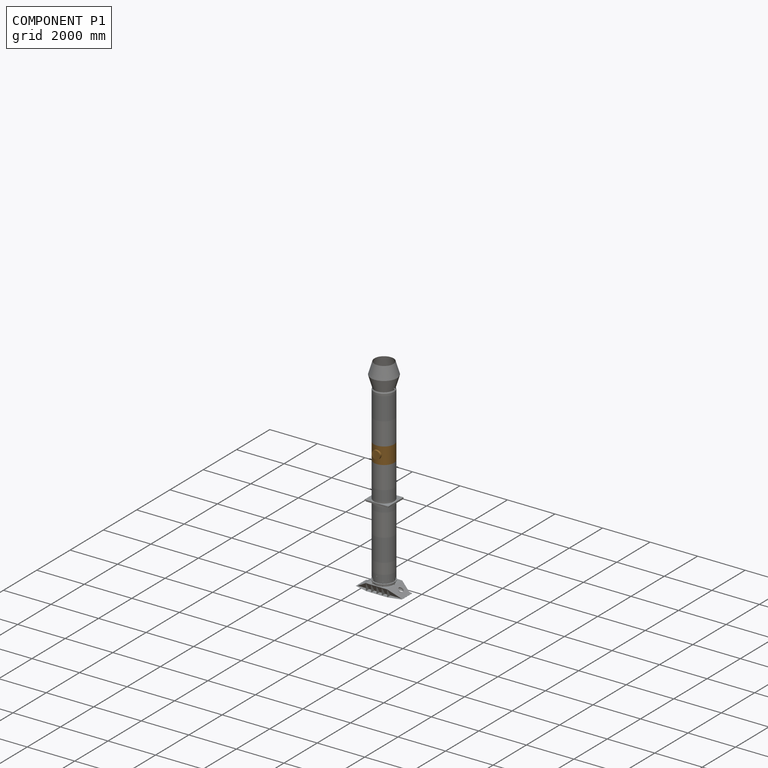
[diagram: component P1 — assembled]
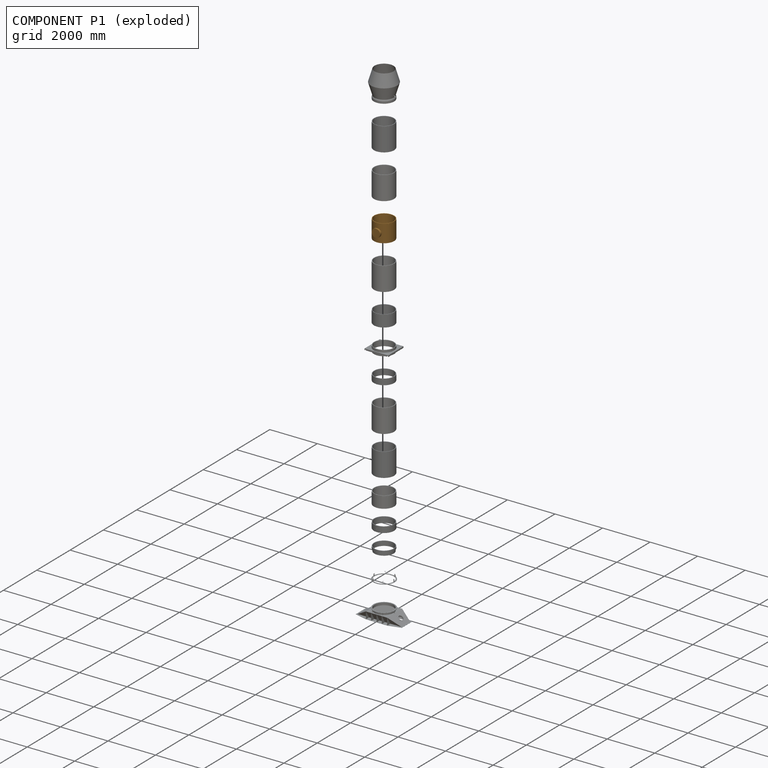
[diagram: component P1 — exploded]
COMPONENT P1 — geometry summary (no construction recipe available for this part):
  bounding box: 914.0 x 850.0 x 745.0 mm
  B-rep topology: 1 solid, 16 faces, 50 edges
  volume: 47649899 mm^3 (8% of its bounding box)
  symmetry: mirror-symmetric across its y mid-plane
Held by: FASTENED mate "Fastened 11" to P6; FASTENED mate "Fastened 12" to P8.
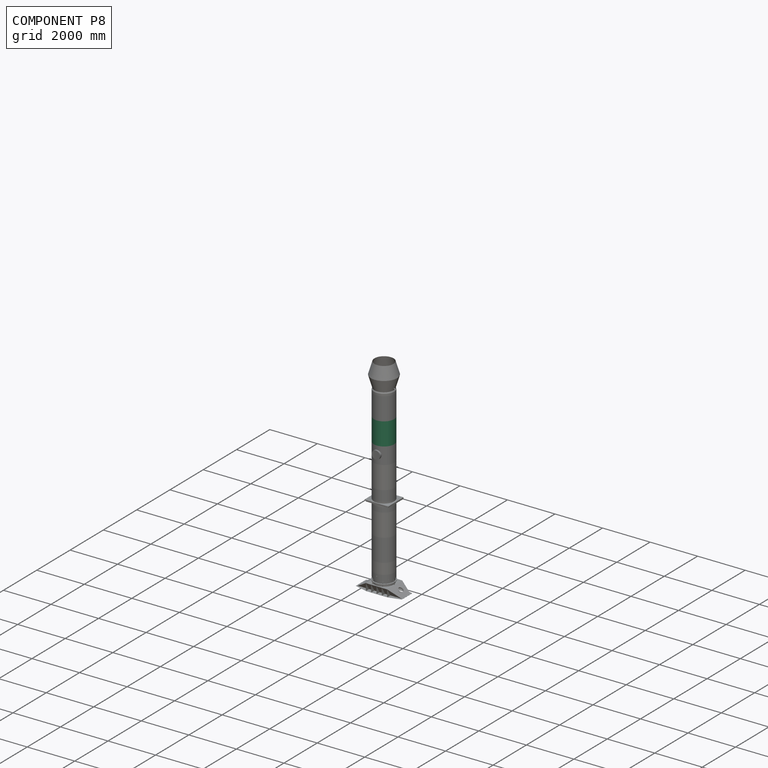
[diagram: component P8 — assembled]
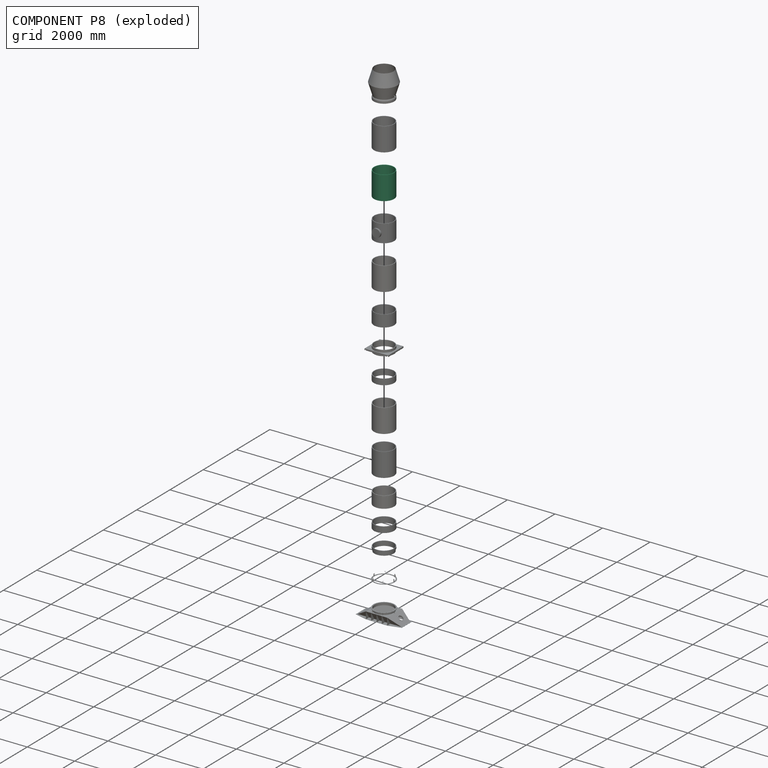
[diagram: component P8 — exploded]
COMPONENT P8 — same part as P5 (CADFS 00581818); its construction recipe is shown at P5.
Held by: FASTENED mate "Fastened 12" to P1; FASTENED mate "Fastened 13" to P9.
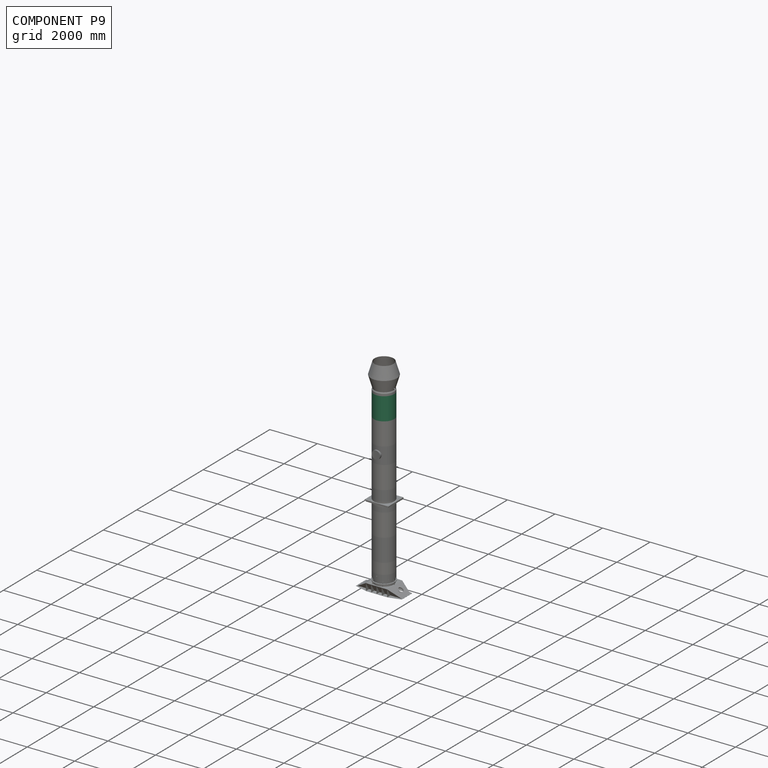
[diagram: component P9 — assembled]
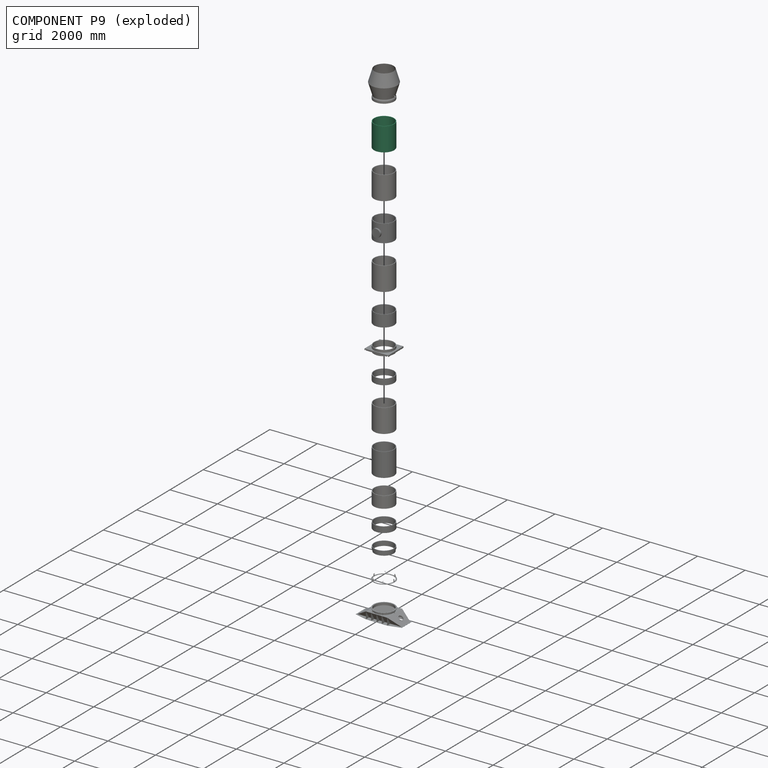
[diagram: component P9 — exploded]
COMPONENT P9 — same part as P5 (CADFS 00581818); its construction recipe is shown at P5.
Held by: FASTENED mate "Fastened 14" to P14; FASTENED mate "Fastened 13" to P8.
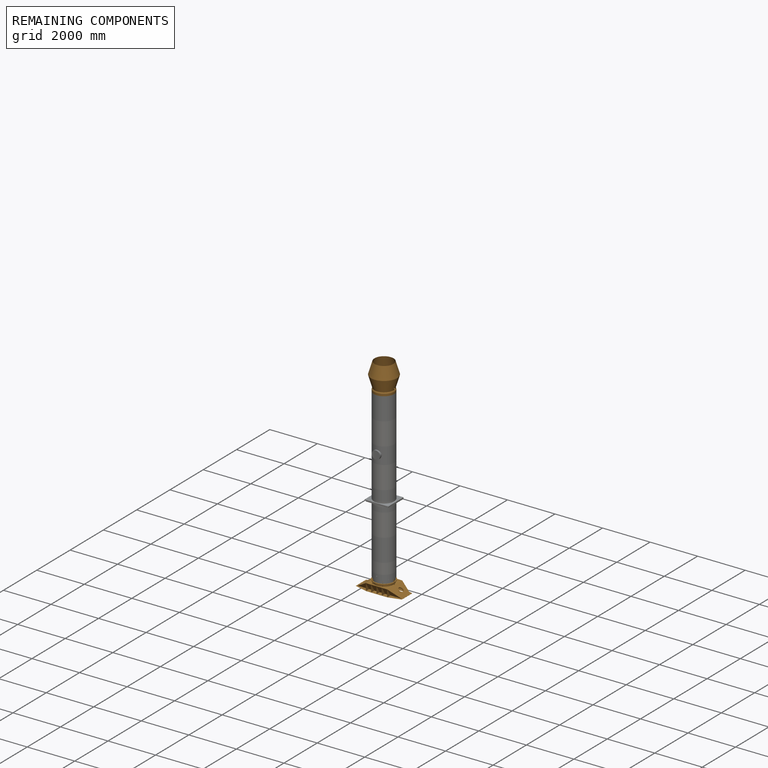
[diagram: remaining components — assembled]
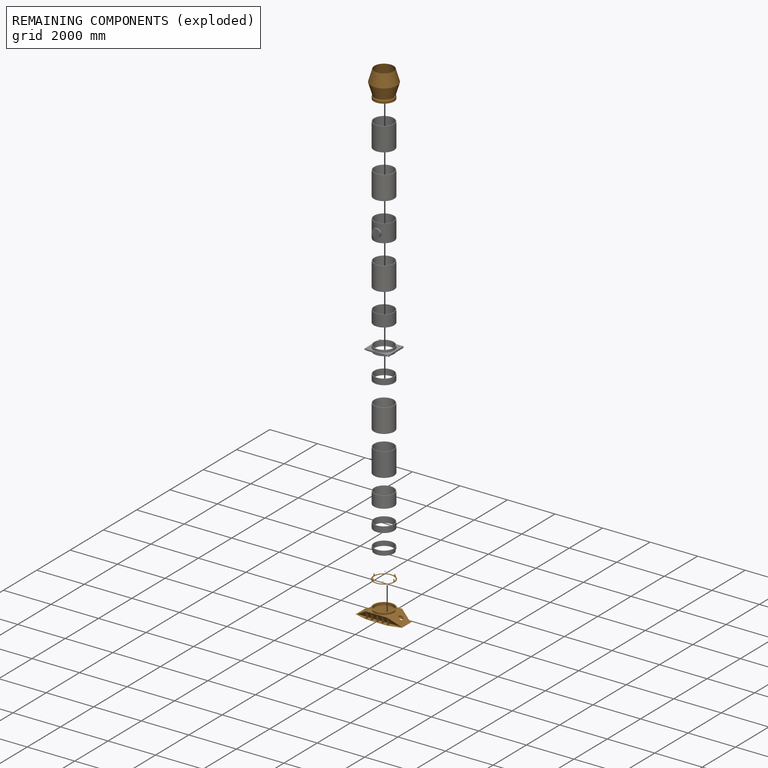
[diagram: remaining components — exploded]
REMAINING COMPONENTS (grouped) — the 3 components below fall outside the per-component tour by the significance rule stated above; both spotlight views highlight the whole group.
  P0: bounding box 900.0 x 900.0 x 105.0 mm, volume 1317591 mm^3. Held by: FASTENED mate "Fastened 1" to P2.
  P2: bounding box 1940.0 x 900.0 x 400.0 mm, volume 11119578 mm^3. Held by: FASTENED mate "Fastened 2" to P11; FASTENED mate "Fastened 1" to P0.
  P14: bounding box 1140.2 x 1102.2 x 1102.2 mm, volume 8784801 mm^3. Held by: FASTENED mate "Fastened 14" to P9.
PROVENANCE & LICENSES
Assembly (occurrences, transforms, mates, per-part STEP geometry): AutoMate dataset, Zenodo record 7776208, CC0.
Construction recipes: CADFS (HuggingFace VladPyatov/CADFS, CC-BY-4.0, layered over the ABC dataset), FeatureScript reconstruction programs keyed by ABC model id.
Join: ABC meta listings map ABC model id -> Onshape documentId; within a shared document, parts are matched by geometric signature (bounding-box dims + volume at 0.1% relative tolerance, exact B-rep face/solid counts).
Verification: 11 of this assembly's 15 components carry a recipe attachment, and every attachment is mesh-verified: the CADFS STEP and the AutoMate member STEP were compared as meshes in their shared local frame (symmetric sampled-point-to-mesh distance); worst across the 11 attachments: below the mesh-comparison resolution (tessellation chordal tolerance ~2.34 mm) on a 1560 mm part.
Renders: orthographic iso camera (az 35 / el 25); the floor grid conveys scale (grid pitch printed in each image; no ruler). In the exploded view each component is displaced by its stored offset vector: the offsets alone carry the explosion direction (mate normal/axis signs are not orientation cues and do not encode it), and separation distances are assigned per mate-chain, not proportionally to assembly-order depth.
